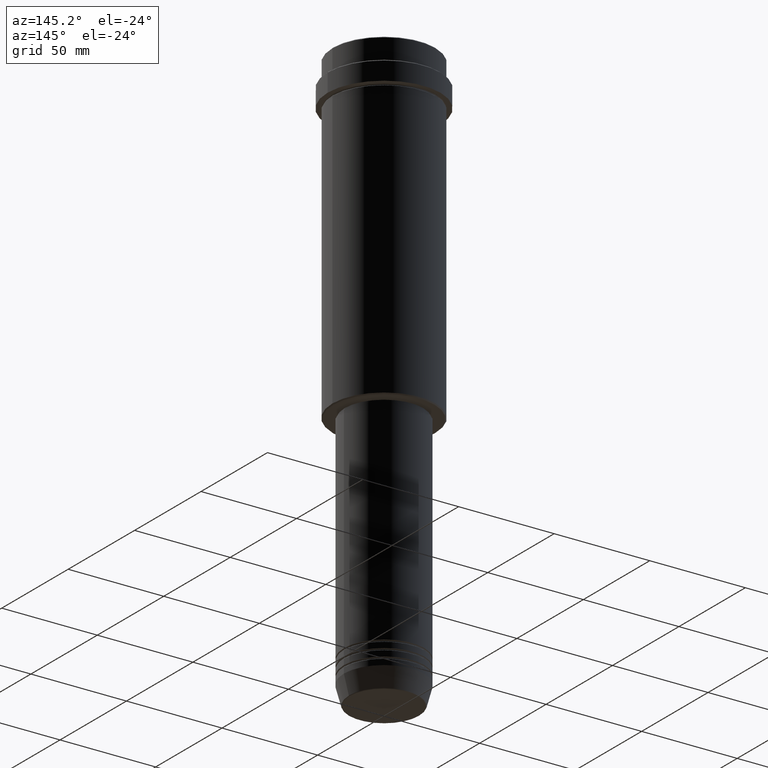
[diagram: clean part render]
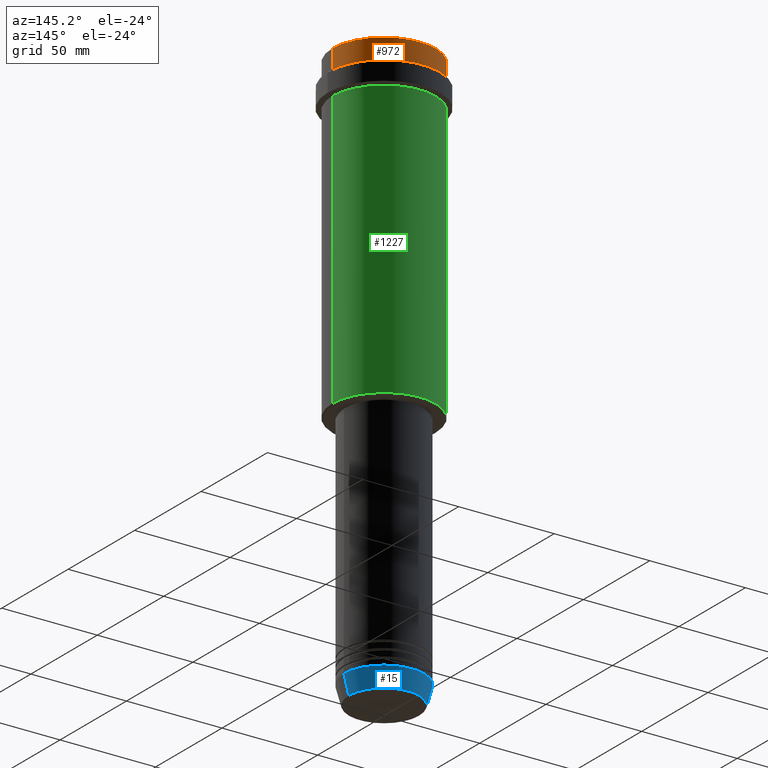
[diagram: same view with three faces highlighted in distinct colors, each labeled with its STEP entity id]
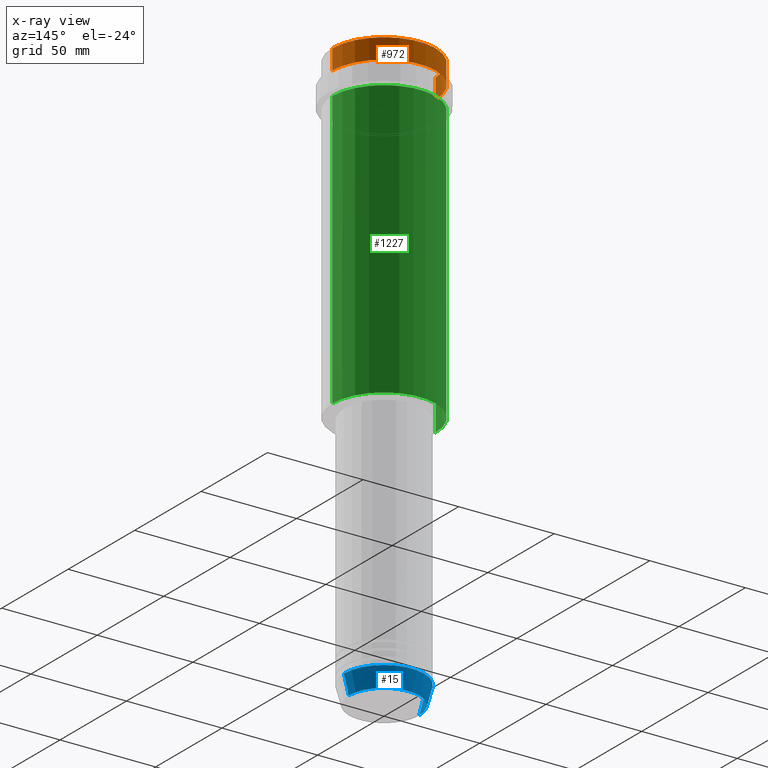
[diagram: x-ray of the same camera — body ghosted, the three highlighted faces saturated]
A machine part, auxiliary view with three faces highlighted in distinct colors.
The next image is the same camera in x-ray (body ghosted, the three faces saturated) — at least one of them is partly hidden behind the body in this view.
Their STEP definitions:

[orange] entity #972 — the highlighted cylindrical surface (partial cylindrical patch) has radius 27 mm, axis along (-0, -0, 1).
#81 = CIRCLE ( 'NONE', #993, 27.00000000000000355 ) ;
#125 = CARTESIAN_POINT ( 'NONE',  ( -27.00000000000000355, 3.306546357697854128E-15, -11.00000000000000178 ) ) ;
#131 = VERTEX_POINT ( 'NONE', #677 ) ;
#137 = CARTESIAN_POINT ( 'NONE',  ( -27.00000000000000355, 3.306546357697854128E-15, -0.5000000000000073275 ) ) ;
#155 = CARTESIAN_POINT ( 'NONE',  ( 0.000000000000000000, 0.000000000000000000, -11.00000000000000178 ) ) ;
#191 = CARTESIAN_POINT ( 'NONE',  ( -27.00000000000000355, 3.306546357697854128E-15, 0.000000000000000000 ) ) ;
#202 = CARTESIAN_POINT ( 'NONE',  ( 27.00000000000000355, 0.000000000000000000, -11.00000000000000178 ) ) ;
#241 = CYLINDRICAL_SURFACE ( 'NONE', #423, 27.00000000000000355 ) ;
#326 = AXIS2_PLACEMENT_3D ( 'NONE', #503, #609, #1276 ) ;
#331 = EDGE_CURVE ( 'NONE', #1191, #1337, #81, .T. ) ;
#340 = CARTESIAN_POINT ( 'NONE',  ( 27.00000000000000355, 0.000000000000000000, 0.000000000000000000 ) ) ;
#363 = DIRECTION ( 'NONE',  ( 1.000000000000000000, 0.000000000000000000, 0.000000000000000000 ) ) ;
#371 = EDGE_CURVE ( 'NONE', #1337, #1332, #1264, .T. ) ;
#376 = DIRECTION ( 'NONE',  ( -0.000000000000000000, -0.000000000000000000, 1.000000000000000000 ) ) ;
#423 = AXIS2_PLACEMENT_3D ( 'NONE', #805, #376, #906 ) ;
#503 = CARTESIAN_POINT ( 'NONE',  ( 0.000000000000000000, 0.000000000000000000, -0.5000000000000073275 ) ) ;
#552 = CIRCLE ( 'NONE', #326, 27.00000000000000355 ) ;
#558 = VECTOR ( 'NONE', #632, 1000.000000000000000 ) ;
#565 = ORIENTED_EDGE ( 'NONE', *, *, #331, .T. ) ;
#609 = DIRECTION ( 'NONE',  ( 0.000000000000000000, 0.000000000000000000, -1.000000000000000000 ) ) ;
#632 = DIRECTION ( 'NONE',  ( -0.000000000000000000, -0.000000000000000000, 1.000000000000000000 ) ) ;
#656 = DIRECTION ( 'NONE',  ( -0.000000000000000000, -0.000000000000000000, 1.000000000000000000 ) ) ;
#677 = CARTESIAN_POINT ( 'NONE',  ( 27.00000000000000355, 0.000000000000000000, -0.5000000000000073275 ) ) ;
#678 = EDGE_CURVE ( 'NONE', #1332, #131, #552, .T. ) ;
#692 = ORIENTED_EDGE ( 'NONE', *, *, #678, .T. ) ;
#805 = CARTESIAN_POINT ( 'NONE',  ( 0.000000000000000000, 0.000000000000000000, 0.000000000000000000 ) ) ;
#851 = EDGE_CURVE ( 'NONE', #1191, #131, #864, .T. ) ;
#864 = LINE ( 'NONE', #340, #1040 ) ;
#905 = ORIENTED_EDGE ( 'NONE', *, *, #371, .T. ) ;
#906 = DIRECTION ( 'NONE',  ( 1.000000000000000000, 0.000000000000000000, 0.000000000000000000 ) ) ;
#972 = ADVANCED_FACE ( 'NONE', ( #1024 ), #241, .T. ) ;
#993 = AXIS2_PLACEMENT_3D ( 'NONE', #155, #1150, #363 ) ;
#1024 = FACE_OUTER_BOUND ( 'NONE', #1221, .T. ) ;
#1040 = VECTOR ( 'NONE', #656, 1000.000000000000000 ) ;
#1150 = DIRECTION ( 'NONE',  ( -0.000000000000000000, -0.000000000000000000, 1.000000000000000000 ) ) ;
#1191 = VERTEX_POINT ( 'NONE', #202 ) ;
#1221 = EDGE_LOOP ( 'NONE', ( #565, #905, #692, #1285 ) ) ;
#1264 = LINE ( 'NONE', #191, #558 ) ;
#1276 = DIRECTION ( 'NONE',  ( 1.000000000000000000, 0.000000000000000000, 0.000000000000000000 ) ) ;
#1285 = ORIENTED_EDGE ( 'NONE', *, *, #851, .F. ) ;
#1332 = VERTEX_POINT ( 'NONE', #137 ) ;
#1337 = VERTEX_POINT ( 'NONE', #125 ) ;

[blue] entity #15 — the highlighted conical surface has half-angle 15 deg.
#15 = ADVANCED_FACE ( 'NONE', ( #921 ), #554, .T. ) ;
#42 = DIRECTION ( 'NONE',  ( 1.000000000000000000, 0.000000000000000000, 0.000000000000000000 ) ) ;
#44 = VERTEX_POINT ( 'NONE', #1234 ) ;
#63 = CARTESIAN_POINT ( 'NONE',  ( 18.41980749484383750, 0.000000000000000000, -302.6294095225512706 ) ) ;
#74 = CARTESIAN_POINT ( 'NONE',  ( 0.000000000000000000, 0.000000000000000000, -293.0000000000000568 ) ) ;
#165 = CIRCLE ( 'NONE', #762, 18.41980749484383750 ) ;
#237 = CARTESIAN_POINT ( 'NONE',  ( 21.00000000000000000, 0.000000000000000000, -293.0000000000000568 ) ) ;
#277 = CIRCLE ( 'NONE', #1130, 21.00000000000000000 ) ;
#285 = DIRECTION ( 'NONE',  ( -0.000000000000000000, -0.000000000000000000, 1.000000000000000000 ) ) ;
#287 = ORIENTED_EDGE ( 'NONE', *, *, #392, .T. ) ;
#291 = DIRECTION ( 'NONE',  ( -0.2588190451025211836, 3.169619151431770488E-17, 0.9659258262890680902 ) ) ;
#292 = VERTEX_POINT ( 'NONE', #1256 ) ;
#309 = LINE ( 'NONE', #504, #1353 ) ;
#382 = DIRECTION ( 'NONE',  ( -0.000000000000000000, -0.000000000000000000, 1.000000000000000000 ) ) ;
#392 = EDGE_CURVE ( 'NONE', #292, #44, #309, .T. ) ;
#483 = ORIENTED_EDGE ( 'NONE', *, *, #1032, .F. ) ;
#504 = CARTESIAN_POINT ( 'NONE',  ( -21.00000000000000000, 2.571758278209441661E-15, -293.0000000000000568 ) ) ;
#520 = VERTEX_POINT ( 'NONE', #63 ) ;
#554 = CONICAL_SURFACE ( 'NONE', #626, 21.00000000000000000, 0.2617993877991499074 ) ;
#626 = AXIS2_PLACEMENT_3D ( 'NONE', #1271, #1135, #42 ) ;
#683 = CARTESIAN_POINT ( 'NONE',  ( 0.000000000000000000, 0.000000000000000000, -302.6294095225512706 ) ) ;
#729 = ORIENTED_EDGE ( 'NONE', *, *, #889, .F. ) ;
#762 = AXIS2_PLACEMENT_3D ( 'NONE', #683, #285, #1144 ) ;
#886 = VERTEX_POINT ( 'NONE', #237 ) ;
#889 = EDGE_CURVE ( 'NONE', #520, #886, #1030, .T. ) ;
#898 = ORIENTED_EDGE ( 'NONE', *, *, #1001, .T. ) ;
#921 = FACE_OUTER_BOUND ( 'NONE', #1173, .T. ) ;
#1001 = EDGE_CURVE ( 'NONE', #520, #292, #165, .T. ) ;
#1011 = DIRECTION ( 'NONE',  ( 0.2588190451025211836, 0.000000000000000000, 0.9659258262890680902 ) ) ;
#1030 = LINE ( 'NONE', #1107, #1282 ) ;
#1032 = EDGE_CURVE ( 'NONE', #886, #44, #277, .T. ) ;
#1107 = CARTESIAN_POINT ( 'NONE',  ( 21.00000000000000000, 0.000000000000000000, -293.0000000000000568 ) ) ;
#1130 = AXIS2_PLACEMENT_3D ( 'NONE', #74, #382, #1274 ) ;
#1135 = DIRECTION ( 'NONE',  ( -0.000000000000000000, -0.000000000000000000, 1.000000000000000000 ) ) ;
#1144 = DIRECTION ( 'NONE',  ( 1.000000000000000000, 0.000000000000000000, 0.000000000000000000 ) ) ;
#1173 = EDGE_LOOP ( 'NONE', ( #898, #287, #483, #729 ) ) ;
#1234 = CARTESIAN_POINT ( 'NONE',  ( -21.00000000000000000, 2.571758278209441661E-15, -293.0000000000000568 ) ) ;
#1256 = CARTESIAN_POINT ( 'NONE',  ( -18.41980749484383750, 2.413767053578267458E-15, -302.6294095225512706 ) ) ;
#1271 = CARTESIAN_POINT ( 'NONE',  ( 0.000000000000000000, 0.000000000000000000, -293.0000000000000568 ) ) ;
#1274 = DIRECTION ( 'NONE',  ( 1.000000000000000000, 0.000000000000000000, 0.000000000000000000 ) ) ;
#1282 = VECTOR ( 'NONE', #1011, 1000.000000000000114 ) ;
#1353 = VECTOR ( 'NONE', #291, 1000.000000000000114 ) ;

[green] entity #1227 — the highlighted cylindrical surface (partial cylindrical patch) has radius 27 mm, axis along (-0, -0, 1).
#12 = CARTESIAN_POINT ( 'NONE',  ( -27.00000000000000355, 3.306546357697854128E-15, -167.4999999999998863 ) ) ;
#19 = DIRECTION ( 'NONE',  ( -1.000000000000000000, 0.000000000000000000, 0.000000000000000000 ) ) ;
#104 = CARTESIAN_POINT ( 'NONE',  ( 0.000000000000000000, 0.000000000000000000, 0.000000000000000000 ) ) ;
#148 = DIRECTION ( 'NONE',  ( -0.000000000000000000, -0.000000000000000000, 1.000000000000000000 ) ) ;
#214 = DIRECTION ( 'NONE',  ( -0.000000000000000000, -0.000000000000000000, 1.000000000000000000 ) ) ;
#233 = AXIS2_PLACEMENT_3D ( 'NONE', #104, #214, #857 ) ;
#268 = DIRECTION ( 'NONE',  ( 1.000000000000000000, 0.000000000000000000, 0.000000000000000000 ) ) ;
#273 = VERTEX_POINT ( 'NONE', #378 ) ;
#378 = CARTESIAN_POINT ( 'NONE',  ( 27.00000000000000355, 0.000000000000000000, -167.4999999999998863 ) ) ;
#384 = DIRECTION ( 'NONE',  ( -0.000000000000000000, -0.000000000000000000, 1.000000000000000000 ) ) ;
#393 = CARTESIAN_POINT ( 'NONE',  ( 27.00000000000000355, 0.000000000000000000, 0.000000000000000000 ) ) ;
#396 = VECTOR ( 'NONE', #148, 1000.000000000000000 ) ;
#420 = VECTOR ( 'NONE', #384, 1000.000000000000000 ) ;
#459 = CARTESIAN_POINT ( 'NONE',  ( -27.00000000000000355, 3.306546357697854128E-15, 0.000000000000000000 ) ) ;
#478 = LINE ( 'NONE', #459, #396 ) ;
#525 = CYLINDRICAL_SURFACE ( 'NONE', #233, 27.00000000000000355 ) ;
#564 = EDGE_CURVE ( 'NONE', #273, #789, #644, .T. ) ;
#621 = LINE ( 'NONE', #393, #420 ) ;
#644 = CIRCLE ( 'NONE', #1189, 27.00000000000000355 ) ;
#661 = EDGE_CURVE ( 'NONE', #273, #725, #621, .T. ) ;
#725 = VERTEX_POINT ( 'NONE', #941 ) ;
#728 = CARTESIAN_POINT ( 'NONE',  ( 0.000000000000000000, 0.000000000000000000, -23.00000000000001421 ) ) ;
#789 = VERTEX_POINT ( 'NONE', #12 ) ;
#799 = ORIENTED_EDGE ( 'NONE', *, *, #661, .F. ) ;
#845 = CARTESIAN_POINT ( 'NONE',  ( 0.000000000000000000, 0.000000000000000000, -167.4999999999998863 ) ) ;
#857 = DIRECTION ( 'NONE',  ( 1.000000000000000000, 0.000000000000000000, 0.000000000000000000 ) ) ;
#940 = EDGE_CURVE ( 'NONE', #789, #1235, #478, .T. ) ;
#941 = CARTESIAN_POINT ( 'NONE',  ( 27.00000000000000355, 0.000000000000000000, -23.00000000000001421 ) ) ;
#943 = ORIENTED_EDGE ( 'NONE', *, *, #940, .T. ) ;
#946 = CIRCLE ( 'NONE', #1261, 27.00000000000000355 ) ;
#1090 = FACE_OUTER_BOUND ( 'NONE', #1232, .T. ) ;
#1117 = EDGE_CURVE ( 'NONE', #725, #1235, #946, .T. ) ;
#1140 = ORIENTED_EDGE ( 'NONE', *, *, #1117, .F. ) ;
#1189 = AXIS2_PLACEMENT_3D ( 'NONE', #845, #1284, #19 ) ;
#1227 = ADVANCED_FACE ( 'NONE', ( #1090 ), #525, .T. ) ;
#1232 = EDGE_LOOP ( 'NONE', ( #1323, #943, #1140, #799 ) ) ;
#1235 = VERTEX_POINT ( 'NONE', #1411 ) ;
#1253 = DIRECTION ( 'NONE',  ( -0.000000000000000000, -0.000000000000000000, 1.000000000000000000 ) ) ;
#1261 = AXIS2_PLACEMENT_3D ( 'NONE', #728, #1253, #268 ) ;
#1284 = DIRECTION ( 'NONE',  ( -0.000000000000000000, -0.000000000000000000, 1.000000000000000000 ) ) ;
#1323 = ORIENTED_EDGE ( 'NONE', *, *, #564, .T. ) ;
#1411 = CARTESIAN_POINT ( 'NONE',  ( -27.00000000000000355, 3.306546357697854128E-15, -23.00000000000001421 ) ) ;